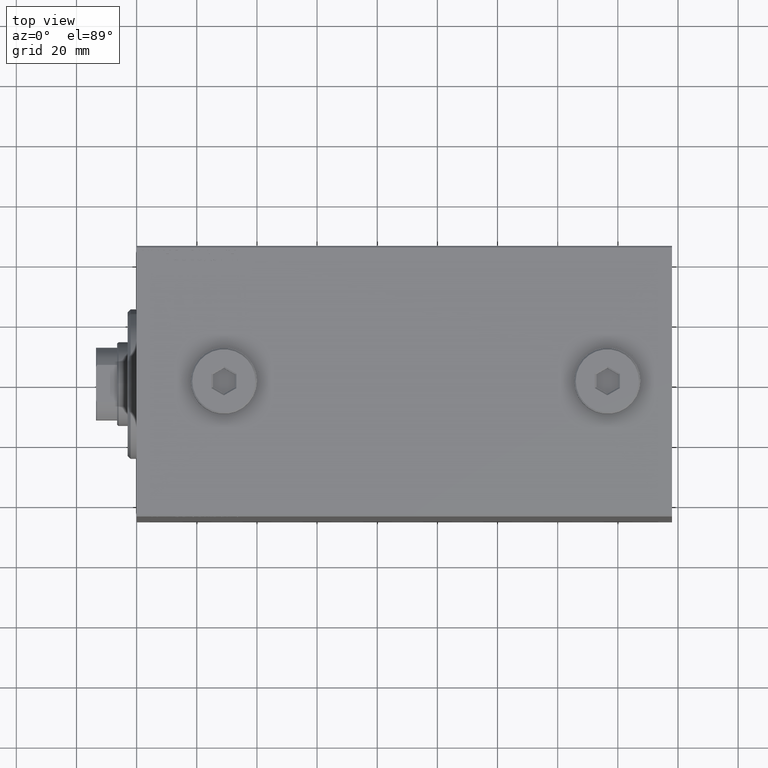
[diagram: clean part render]
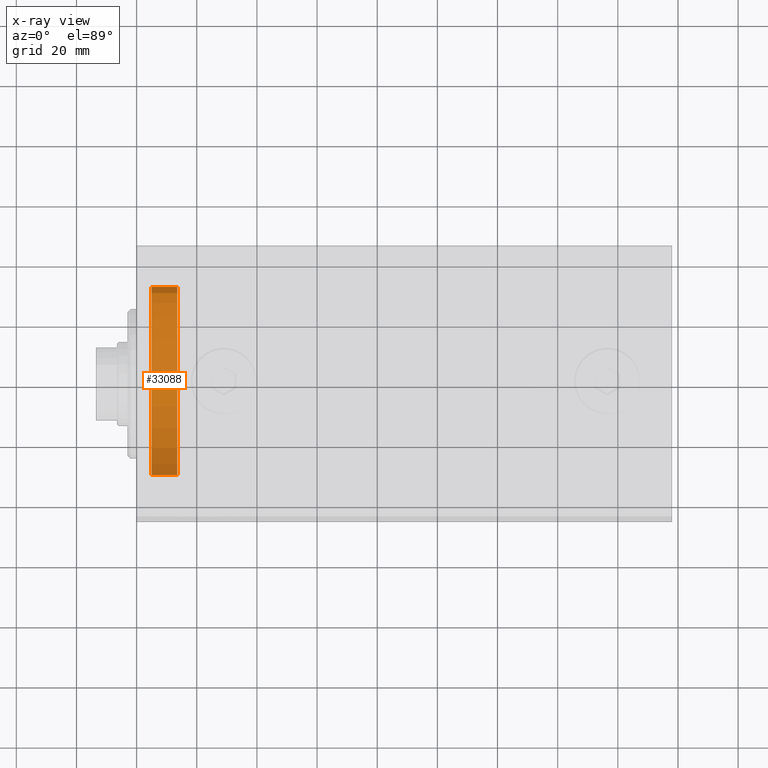
[diagram: x-ray — body ghosted, one internal face saturated and labeled with its STEP entity id]
A machine part, top view, then the same camera in x-ray: the body is ghosted and one INTERNAL B-rep face — a face not visible from any outside direction — is saturated and labeled: STEP entity #33088.
In plain terms, the highlighted cylindrical surface (partial cylindrical patch) has radius 32.5 mm, axis along (-1, 0, 0).
Its self-contained STEP definition (entity closure, byte-faithful):
#2276 = CYLINDRICAL_SURFACE ( 'NONE', #43911, 32.50000000000000000 ) ;
#4301 = AXIS2_PLACEMENT_3D ( 'NONE', #17611, #10284, #27948 ) ;
#6388 = DIRECTION ( 'NONE',  ( 0.000000000000000000, 0.000000000000000000, -1.000000000000000000 ) ) ;
#6467 = DIRECTION ( 'NONE',  ( -1.000000000000000000, 0.000000000000000000, 0.000000000000000000 ) ) ;
#7140 = ORIENTED_EDGE ( 'NONE', *, *, #35425, .T. ) ;
#8028 = VECTOR ( 'NONE', #36803, 1000.000000000000000 ) ;
#9458 = CARTESIAN_POINT ( 'NONE',  ( -5.000000000000000000, 0.000000000000000000, 0.000000000000000000 ) ) ;
#9694 = VERTEX_POINT ( 'NONE', #44574 ) ;
#10284 = DIRECTION ( 'NONE',  ( -1.000000000000000000, 0.000000000000000000, 0.000000000000000000 ) ) ;
#11779 = ORIENTED_EDGE ( 'NONE', *, *, #25690, .F. ) ;
#12333 = CIRCLE ( 'NONE', #4301, 32.50000000000000000 ) ;
#16100 = ORIENTED_EDGE ( 'NONE', *, *, #33116, .T. ) ;
#17611 = CARTESIAN_POINT ( 'NONE',  ( -13.50000000000000178, 0.000000000000000000, 0.000000000000000000 ) ) ;
#19161 = ORIENTED_EDGE ( 'NONE', *, *, #32282, .F. ) ;
#19593 = CARTESIAN_POINT ( 'NONE',  ( -13.50000000000000178, 0.000000000000000000, -32.50000000000000000 ) ) ;
#21267 = AXIS2_PLACEMENT_3D ( 'NONE', #9458, #6467, #34455 ) ;
#23355 = CARTESIAN_POINT ( 'NONE',  ( -13.50000000000000178, 3.980102097228898626E-15, 32.50000000000000000 ) ) ;
#23812 = FACE_OUTER_BOUND ( 'NONE', #43935, .T. ) ;
#24945 = CIRCLE ( 'NONE', #21267, 32.50000000000000000 ) ;
#25690 = EDGE_CURVE ( 'NONE', #9694, #43751, #12333, .T. ) ;
#27948 = DIRECTION ( 'NONE',  ( 0.000000000000000000, 0.000000000000000000, 1.000000000000000000 ) ) ;
#30262 = LINE ( 'NONE', #23355, #44628 ) ;
#32282 = EDGE_CURVE ( 'NONE', #43751, #39758, #40225, .T. ) ;
#33088 = ADVANCED_FACE ( 'NONE', ( #23812 ), #2276, .T. ) ;
#33116 = EDGE_CURVE ( 'NONE', #9694, #44674, #30262, .T. ) ;
#33471 = CARTESIAN_POINT ( 'NONE',  ( -13.50000000000000178, 0.000000000000000000, 0.000000000000000000 ) ) ;
#34455 = DIRECTION ( 'NONE',  ( 0.000000000000000000, 0.000000000000000000, 1.000000000000000000 ) ) ;
#34741 = CARTESIAN_POINT ( 'NONE',  ( -5.000000000000000000, 3.980102097228898626E-15, 32.50000000000000000 ) ) ;
#35425 = EDGE_CURVE ( 'NONE', #44674, #39758, #24945, .T. ) ;
#36803 = DIRECTION ( 'NONE',  ( 1.000000000000000000, -0.000000000000000000, -0.000000000000000000 ) ) ;
#37362 = DIRECTION ( 'NONE',  ( 1.000000000000000000, -0.000000000000000000, -0.000000000000000000 ) ) ;
#37515 = CARTESIAN_POINT ( 'NONE',  ( -5.000000000000000000, 0.000000000000000000, -32.50000000000000000 ) ) ;
#39758 = VERTEX_POINT ( 'NONE', #37515 ) ;
#40225 = LINE ( 'NONE', #44096, #8028 ) ;
#41460 = DIRECTION ( 'NONE',  ( 1.000000000000000000, -0.000000000000000000, -0.000000000000000000 ) ) ;
#43751 = VERTEX_POINT ( 'NONE', #19593 ) ;
#43911 = AXIS2_PLACEMENT_3D ( 'NONE', #33471, #41460, #6388 ) ;
#43935 = EDGE_LOOP ( 'NONE', ( #11779, #16100, #7140, #19161 ) ) ;
#44096 = CARTESIAN_POINT ( 'NONE',  ( -13.50000000000000178, 0.000000000000000000, -32.50000000000000000 ) ) ;
#44574 = CARTESIAN_POINT ( 'NONE',  ( -13.50000000000000178, 3.980102097228898626E-15, 32.50000000000000000 ) ) ;
#44628 = VECTOR ( 'NONE', #37362, 1000.000000000000000 ) ;
#44674 = VERTEX_POINT ( 'NONE', #34741 ) ;